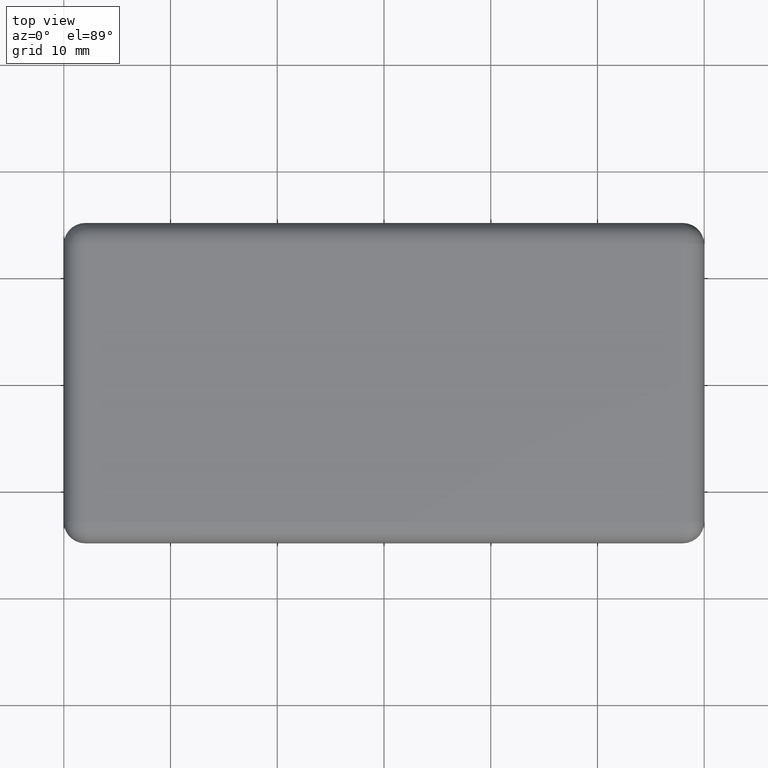
[diagram: clean part render]
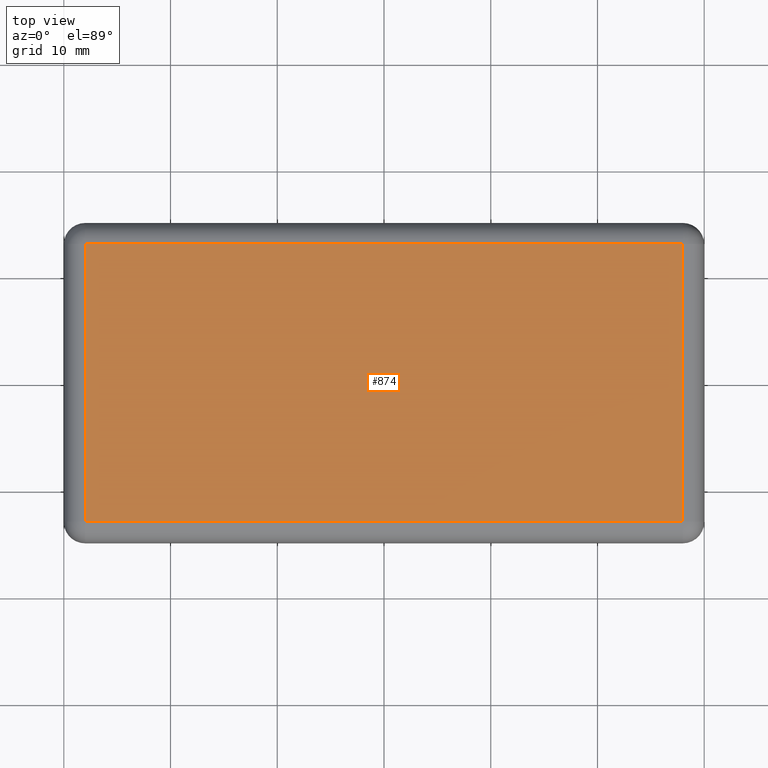
[diagram: same view with one face highlighted and labeled with its STEP entity id]
A machine part, top view. The second image highlights one B-rep face of the part: STEP entity #874.
In plain terms, the highlighted planar face has unit normal (0, 0, 1).
Its self-contained STEP definition (entity closure, byte-faithful):
#92=FACE_OUTER_BOUND('',#144,.T.);
#144=EDGE_LOOP('',(#779,#780,#781,#782));
#241=LINE('',#1400,#345);
#245=LINE('',#1413,#349);
#247=LINE('',#1416,#351);
#249=LINE('',#1419,#353);
#345=VECTOR('',#1144,26.);
#349=VECTOR('',#1160,56.);
#351=VECTOR('',#1164,26.);
#353=VECTOR('',#1168,56.);
#420=VERTEX_POINT('',#1371);
#423=VERTEX_POINT('',#1381);
#426=VERTEX_POINT('',#1391);
#429=VERTEX_POINT('',#1404);
#538=EDGE_CURVE('',#420,#426,#241,.T.);
#545=EDGE_CURVE('',#426,#429,#245,.T.);
#547=EDGE_CURVE('',#429,#423,#247,.T.);
#549=EDGE_CURVE('',#423,#420,#249,.T.);
#779=ORIENTED_EDGE('',*,*,#538,.F.);
#780=ORIENTED_EDGE('',*,*,#549,.F.);
#781=ORIENTED_EDGE('',*,*,#547,.F.);
#782=ORIENTED_EDGE('',*,*,#545,.F.);
#825=PLANE('',#941);
#874=ADVANCED_FACE('',(#92),#825,.T.);
#941=AXIS2_PLACEMENT_3D('',#1423,#1174,#1175);
#1144=DIRECTION('',(-2.96059473233375E-16,-1.,0.));
#1160=DIRECTION('',(-1.,-1.48029736616688E-16,0.));
#1164=DIRECTION('',(0.,1.,0.));
#1168=DIRECTION('',(1.,2.59052039079203E-16,0.));
#1174=DIRECTION('center_axis',(0.,0.,1.));
#1175=DIRECTION('ref_axis',(1.,0.,0.));
#1371=CARTESIAN_POINT('',(28.,13.,3.));
#1381=CARTESIAN_POINT('',(-28.,13.,3.));
#1391=CARTESIAN_POINT('',(28.,-13.,3.));
#1400=CARTESIAN_POINT('',(28.,-7.5,3.));
#1404=CARTESIAN_POINT('',(-28.,-13.,3.));
#1413=CARTESIAN_POINT('',(-15.,-13.,3.));
#1416=CARTESIAN_POINT('',(-28.,7.5,3.));
#1419=CARTESIAN_POINT('',(15.,13.,3.));
#1423=CARTESIAN_POINT('Origin',(-8.88178419700125E-15,0.,3.));